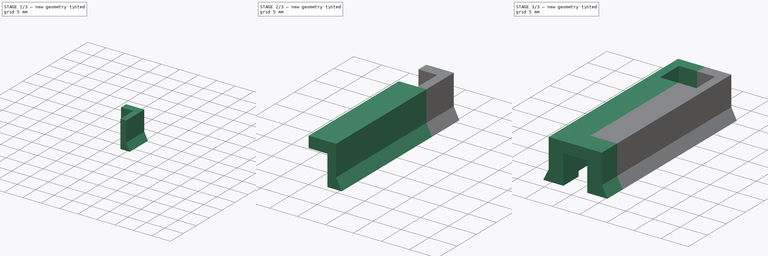
[diagram: build sequence overview — one tinted view per stage of 3, left to right]
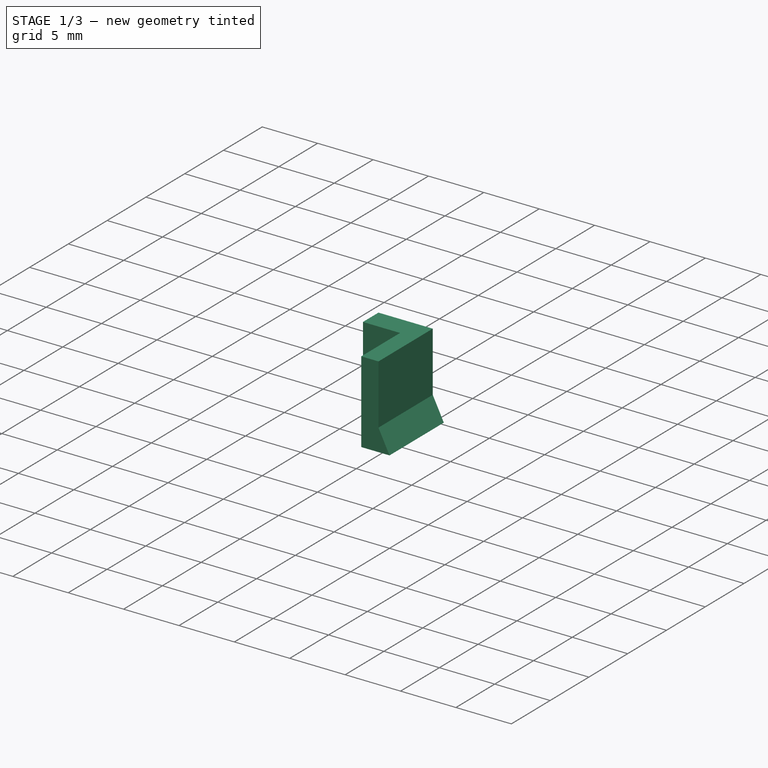
[diagram: stage 1 of 3 — iso view after this stage's code; geometry added in this stage tinted green]
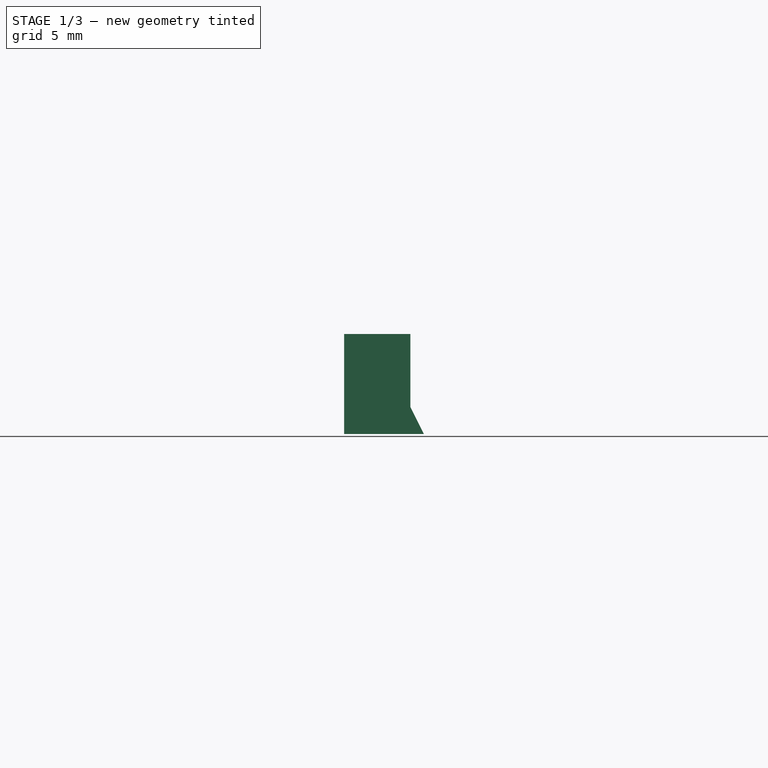
[diagram: stage 1 of 3 — front view after this stage's code; geometry added in this stage tinted green]
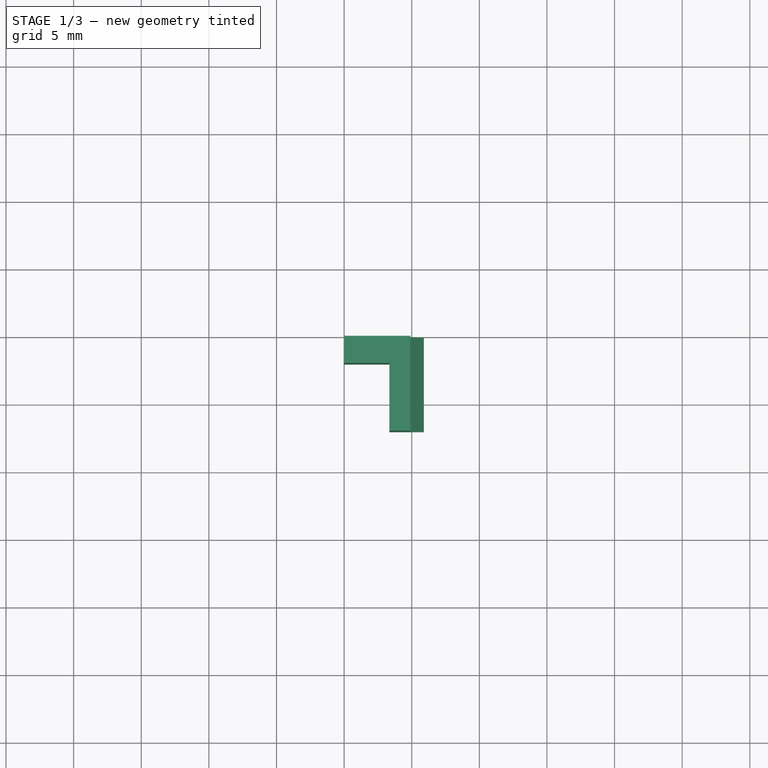
[diagram: stage 1 of 3 — top view after this stage's code; geometry added in this stage tinted green]
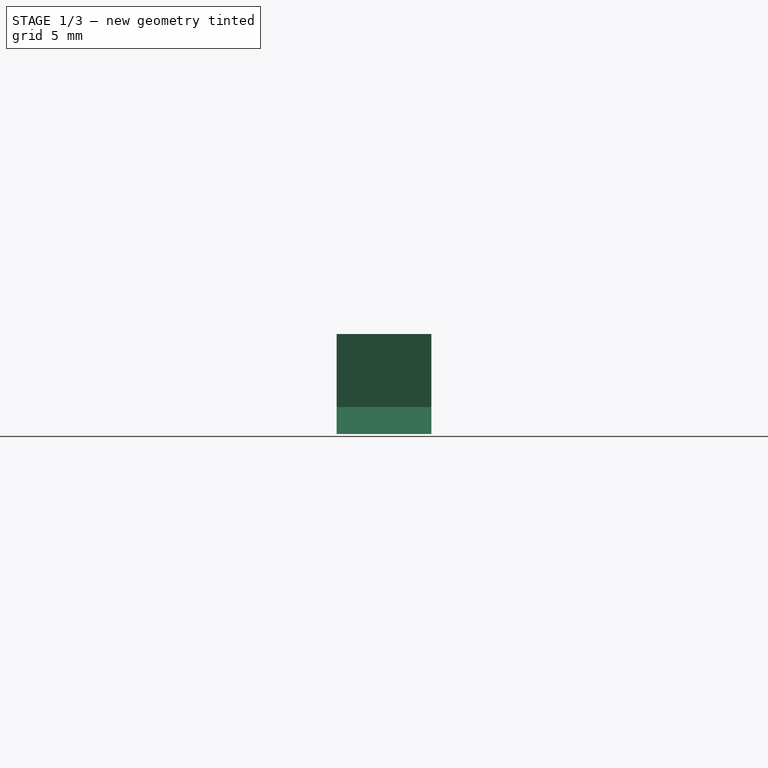
[diagram: stage 1 of 3 — right view after this stage's code; geometry added in this stage tinted green]
FCSTD DOCUMENT  (FreeCAD 0.19R24291 (Git))
Label: gercon Fixture
License: All rights reserved
LicenseURL: http://en.wikipedia.org/wiki/All_rights_reserved
objects: Sketcher::SketchObject×4, PartDesign::Pad×4, PartDesign::Mirrored×1, PartDesign::Body×1
note: 14 computed .brp shape members not serialized (recipe doc carries the construction recipe); baked Part::Feature solids carry a one-line shape summary decoded from their .brp

FEATURE [Sketcher::SketchObject] Sketch
  FullyConstrained = true
  MapMode = 5
  Placement = pos=(0,0,0) rot=(1,0,0;1.5708rad)
  Support = -> [XZ_Plane]
  sketch-geometry (5):
    g0: LineSegment StartX=5.9 StartY=0 StartZ=0 EndX=4.9 EndY=2 EndZ=0
    g1: LineSegment StartX=4.9 StartY=2 StartZ=0 EndX=4.9 EndY=7.4 EndZ=0
    g2: LineSegment StartX=4.9 StartY=7.4 StartZ=0 EndX=0 EndY=7.4 EndZ=0
    g3: LineSegment StartX=0 StartY=7.4 StartZ=0 EndX=0 EndY=0 EndZ=0
    g4: LineSegment StartX=0 StartY=0 StartZ=0 EndX=5.9 EndY=0 EndZ=0
  constraints (14):
    c: PointOnObject(g0,g-1)
    c: Distance(g0,g-1) = 5.9
    c: Distance(g0,g-2) = 4.9
    c: Distance(g0,g-1) = 2
    c: Coincident(g1,g0)
    c: Vertical(g1)
    c: Coincident(g2,g1)
    c: PointOnObject(g2,g-2)
    c: Horizontal(g2)
    c: Distance(g1,g-1) = 7.4
    c: Coincident(g3,g2)
    c: Coincident(g3,g-1)
    c: Coincident(g4,g3)
    c: Coincident(g4,g0)
FEATURE [PartDesign::Pad] Pad
  Direction = (1,1,1)
  Length = 2
  Length2 = 100
  Placement = pos=(0,0,0) rot=(1,0,0;1.5708rad)
  Profile = -> Sketch
  Type = 0
FEATURE [Sketcher::SketchObject] Sketch001
  AttachmentOffset = pos=(0,0,2) rot=(0,0,1;0rad)
  FullyConstrained = true
  MapMode = 5
  Placement = pos=(0,-2,4e-16) rot=(1,0,0;1.5708rad)
  Support = -> [XZ_Plane]
  expr: .AttachmentOffset.Base.z = Pad.Length
  expr: Constraints[9] = Sketch.Constraints[9]
  expr: Constraints[3] = Sketch.Constraints[3]
  expr: Constraints[2] = Sketch.Constraints[2]
  expr: Constraints[1] = Sketch.Constraints[1]
  sketch-geometry (8):
    g0: LineSegment StartX=5.9 StartY=0 StartZ=0 EndX=4.9 EndY=2 EndZ=0
    g1: LineSegment StartX=4.9 StartY=2 StartZ=0 EndX=4.9 EndY=7.4 EndZ=0
    g2: LineSegment StartX=4.9 StartY=7.4 StartZ=0 EndX=0 EndY=7.4 EndZ=0
    g3: LineSegment StartX=0 StartY=7.4 StartZ=0 EndX=0 EndY=0 EndZ=0
    g4: LineSegment StartX=0 StartY=0 StartZ=0 EndX=5.9 EndY=0 EndZ=0
    g5: LineSegment StartX=5.9 StartY=0 StartZ=0 EndX=3.35 EndY=0 EndZ=0
    g6: LineSegment StartX=3.35 StartY=0 StartZ=0 EndX=3.35 EndY=7.4 EndZ=0
    g7: LineSegment StartX=4.9 StartY=7.4 StartZ=0 EndX=3.35 EndY=7.4 EndZ=0
  constraints (22):
    c: PointOnObject(g0,g-1)
    c: Distance(g0,g-1) = 5.9
    c: Distance(g0,g-2) = 4.9
    c: Distance(g0,g-1) = 2
    c: Coincident(g1,g0)
    c: Vertical(g1)
    c: Coincident(g2,g1)
    c: PointOnObject(g2,g-2)
    c: Horizontal(g2)
    c: Distance(g1,g-1) = 7.4
    c: Coincident(g3,g2)
    c: Coincident(g3,g-1)
    c: Coincident(g4,g3)
    c: Coincident(g4,g0)
    c: Coincident(g5,g0)
    c: PointOnObject(g5,g4)
    c: Coincident(g6,g5)
    c: Vertical(g6)
    c: Coincident(g7,g1)
    c: PointOnObject(g7,g2)
    c: Coincident(g6,g7)
    c: Distance(g5,g-2) = 3.35
FEATURE [PartDesign::Pad] Pad001
  BaseFeature = -> Pad
  Direction = (1,1,1)
  Length = 5
  Length2 = 100
  Placement = pos=(0,0,0) rot=(1,0,0;1.5708rad)
  Profile = -> Sketch001
  Type = 0
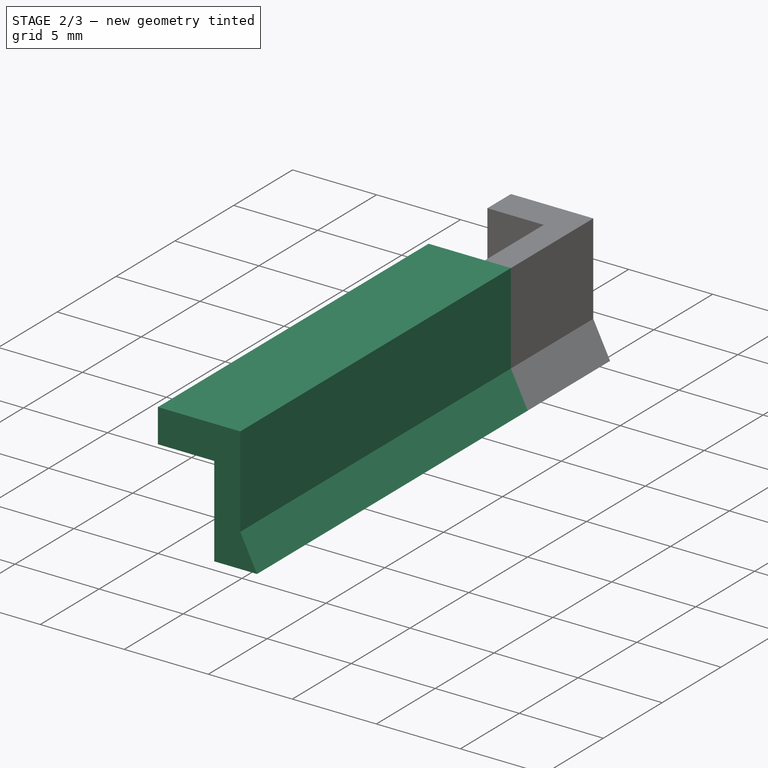
[diagram: stage 2 of 3 — iso view after this stage's code; geometry added in this stage tinted green]
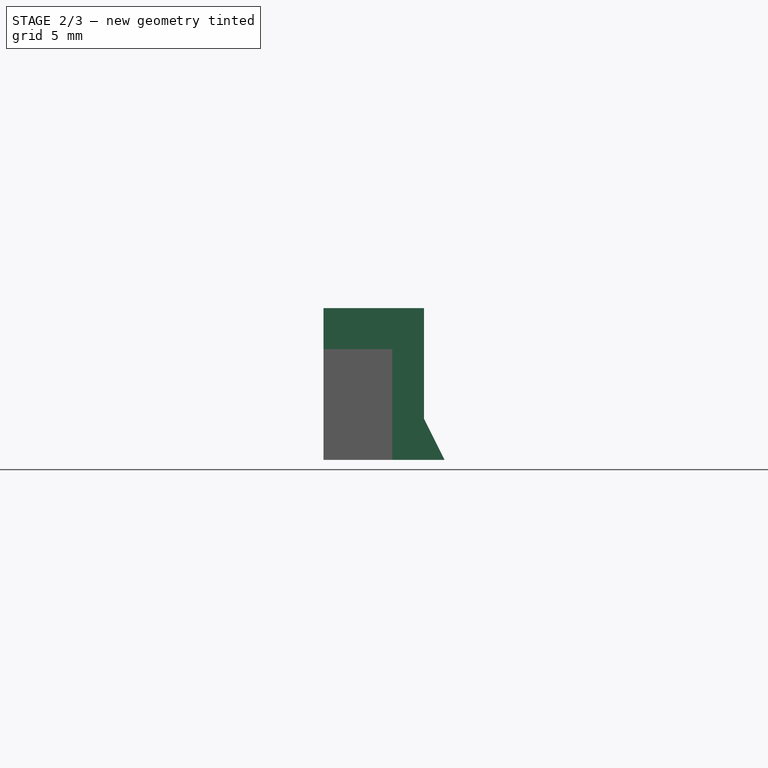
[diagram: stage 2 of 3 — front view after this stage's code; geometry added in this stage tinted green]
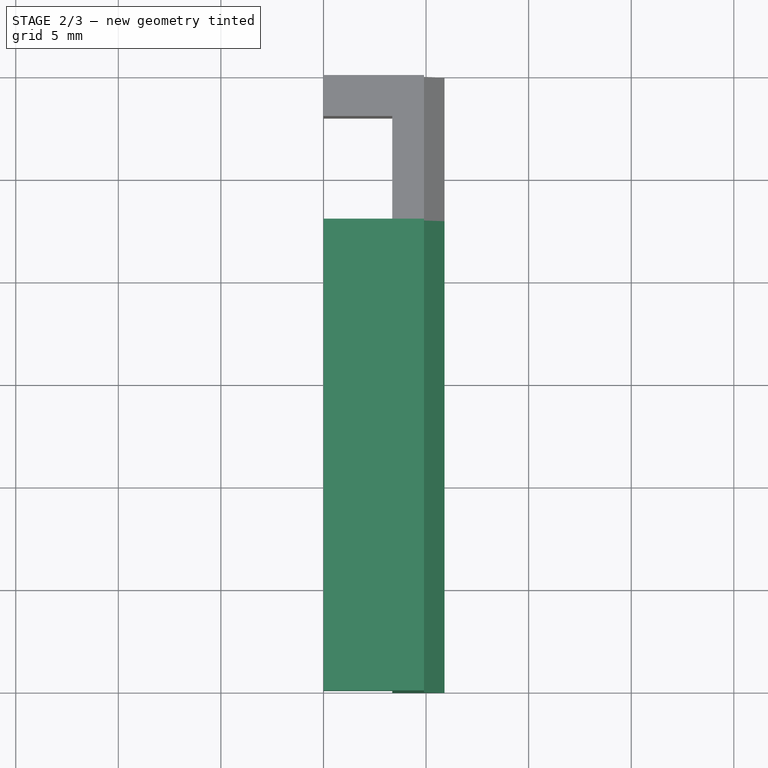
[diagram: stage 2 of 3 — top view after this stage's code; geometry added in this stage tinted green]
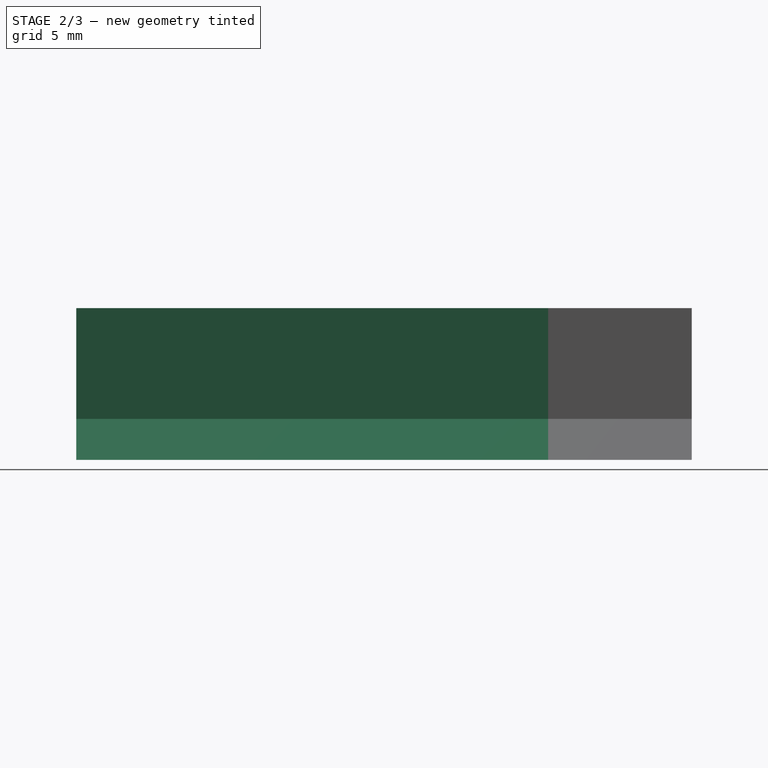
[diagram: stage 2 of 3 — right view after this stage's code; geometry added in this stage tinted green]
FEATURE [Sketcher::SketchObject] Sketch002
  AttachmentOffset = pos=(0,0,7) rot=(0,0,1;0rad)
  FullyConstrained = true
  MapMode = 5
  Placement = pos=(0,-7,1.6e-15) rot=(1,0,0;1.5708rad)
  Support = -> [XZ_Plane]
  expr: .AttachmentOffset.Base.z = Pad.Length + Pad001.Length
  expr: Constraints[21] = Sketch001.Constraints[21]
  expr: Constraints[9] = Sketch001.Constraints[9]
  expr: Constraints[3] = Sketch001.Constraints[3]
  expr: Constraints[2] = Sketch001.Constraints[2]
  expr: Constraints[1] = Sketch001.Constraints[1]
  sketch-geometry (11):
    g0: LineSegment StartX=5.9 StartY=0 StartZ=0 EndX=4.9 EndY=2 EndZ=0
    g1: LineSegment StartX=4.9 StartY=2 StartZ=0 EndX=4.9 EndY=7.4 EndZ=0
    g2: LineSegment StartX=4.9 StartY=7.4 StartZ=0 EndX=0 EndY=7.4 EndZ=0
    g3: LineSegment StartX=0 StartY=7.4 StartZ=0 EndX=0 EndY=0 EndZ=0
    g4: LineSegment StartX=0 StartY=0 StartZ=0 EndX=5.9 EndY=0 EndZ=0
    g5: LineSegment StartX=5.9 StartY=0 StartZ=0 EndX=3.35 EndY=0 EndZ=0
    g6: LineSegment StartX=3.35 StartY=0 StartZ=0 EndX=3.35 EndY=7.4 EndZ=0
    g7: LineSegment StartX=4.9 StartY=7.4 StartZ=0 EndX=3.35 EndY=7.4 EndZ=0
    g8: LineSegment StartX=0 StartY=7.4 StartZ=0 EndX=0 EndY=5.4 EndZ=0
    g9: LineSegment StartX=0 StartY=5.4 StartZ=0 EndX=3.35 EndY=5.4 EndZ=0
    g10: LineSegment StartX=3.35 StartY=5.4 StartZ=0 EndX=3.35 EndY=0 EndZ=0
  constraints (30):
    c: PointOnObject(g0,g-1)
    c: Distance(g0,g-1) = 5.9
    c: Distance(g0,g-2) = 4.9
    c: Distance(g0,g-1) = 2
    c: Coincident(g1,g0)
    c: Vertical(g1)
    c: Coincident(g2,g1)
    c: PointOnObject(g2,g-2)
    c: Horizontal(g2)
    c: Distance(g1,g-1) = 7.4
    c: Coincident(g3,g2)
    c: Coincident(g3,g-1)
    c: Coincident(g4,g3)
    c: Coincident(g4,g0)
    c: Coincident(g5,g0)
    c: PointOnObject(g5,g4)
    c: Coincident(g6,g5)
    c: Vertical(g6)
    c: Coincident(g7,g1)
    c: PointOnObject(g7,g2)
    c: Coincident(g6,g7)
    c: Distance(g5,g-2) = 3.35
    c: Coincident(g8,g2)
    c: PointOnObject(g8,g3)
    c: Coincident(g9,g8)
    c: PointOnObject(g9,g6)
    c: Horizontal(g9)
    c: Coincident(g10,g9)
    c: Coincident(g10,g5)
    c: Distance(g8) = 2
FEATURE [PartDesign::Pad] Pad002
  BaseFeature = -> Pad001
  Direction = (1,1,1)
  Length = 23
  Length2 = 100
  Placement = pos=(0,0,0) rot=(1,0,0;1.5708rad)
  Profile = -> Sketch002
  Type = 0
  expr: Length = 28mm - Pad001.Length
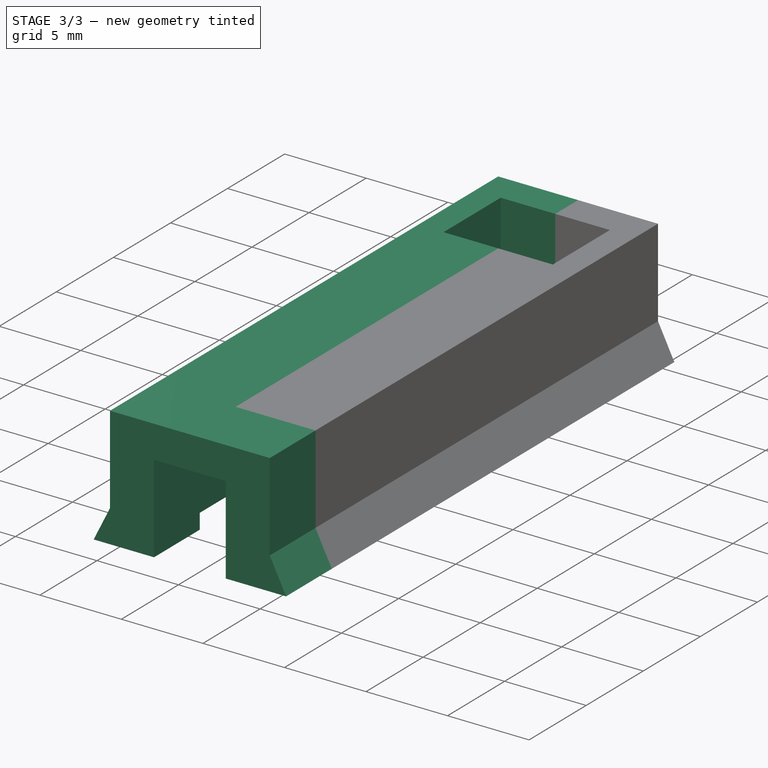
[diagram: stage 3 of 3 — iso view after this stage's code; geometry added in this stage tinted green]
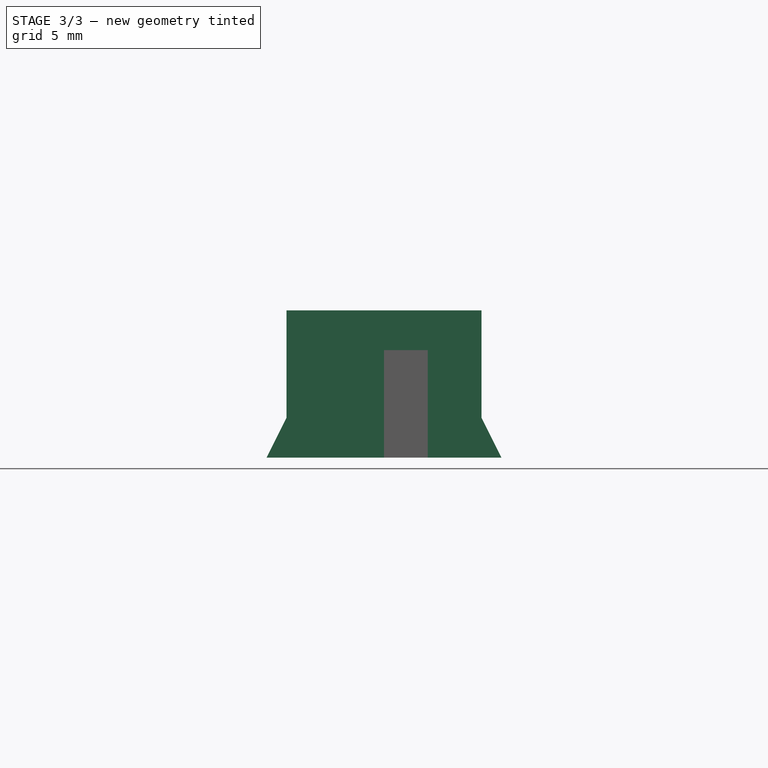
[diagram: stage 3 of 3 — front view after this stage's code; geometry added in this stage tinted green]
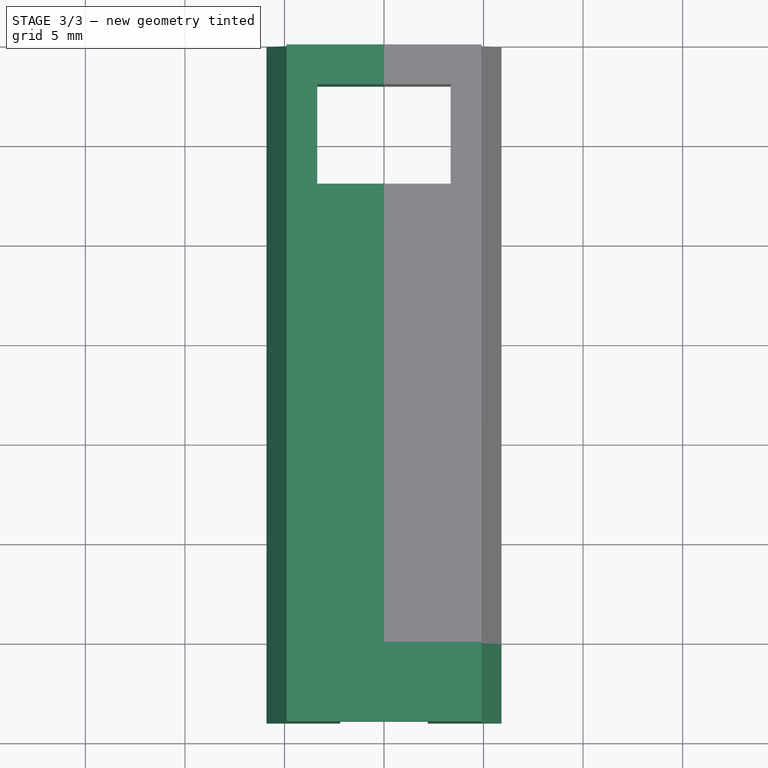
[diagram: stage 3 of 3 — top view after this stage's code; geometry added in this stage tinted green]
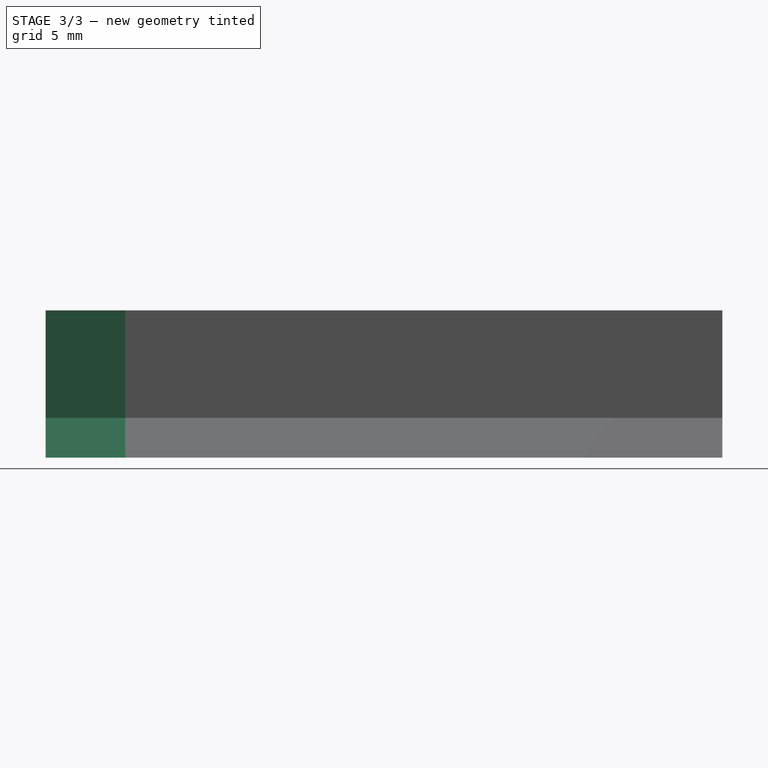
[diagram: stage 3 of 3 — right view after this stage's code; geometry added in this stage tinted green]
FEATURE [Sketcher::SketchObject] Sketch003
  AttachmentOffset = pos=(0,0,30) rot=(0,0,1;0rad)
  FullyConstrained = true
  MapMode = 5
  Placement = pos=(0,-30,6.7e-15) rot=(1,0,0;1.5708rad)
  Support = -> [XZ_Plane]
  expr: .AttachmentOffset.Base.z = Pad.Length + Pad001.Length + Pad002.Length
  expr: Constraints[21] = Sketch002.Constraints[21]
  expr: Constraints[24] = Sketch002.Constraints[29]
  expr: Constraints[3] = Sketch002.Constraints[3]
  expr: Constraints[9] = Sketch002.Constraints[9]
  expr: Constraints[2] = Sketch002.Constraints[2]
  expr: Constraints[1] = Sketch002.Constraints[1]
  sketch-geometry (12):
    g0: LineSegment StartX=5.9 StartY=0 StartZ=0 EndX=4.9 EndY=2 EndZ=0
    g1: LineSegment StartX=4.9 StartY=2 StartZ=0 EndX=4.9 EndY=7.4 EndZ=0
    g2: LineSegment StartX=4.9 StartY=7.4 StartZ=0 EndX=0 EndY=7.4 EndZ=0
    g3: LineSegment StartX=0 StartY=7.4 StartZ=0 EndX=0 EndY=0 EndZ=0
    g4: LineSegment StartX=0 StartY=0 StartZ=0 EndX=5.9 EndY=0 EndZ=0
    g5: LineSegment StartX=5.9 StartY=0 StartZ=0 EndX=3.35 EndY=0 EndZ=0
    g6: LineSegment StartX=3.35 StartY=0 StartZ=0 EndX=3.35 EndY=7.4 EndZ=0
    g7: LineSegment StartX=4.9 StartY=7.4 StartZ=0 EndX=3.35 EndY=7.4 EndZ=0
    g8: LineSegment StartX=0 StartY=7.4 StartZ=0 EndX=0 EndY=5.4 EndZ=0
    g9: LineSegment StartX=3.35 StartY=0 StartZ=0 EndX=2.2 EndY=0 EndZ=0
    g10: LineSegment StartX=0 StartY=5.4 StartZ=0 EndX=2.2 EndY=5.4 EndZ=0
    g11: LineSegment StartX=2.2 StartY=5.4 StartZ=0 EndX=2.2 EndY=0 EndZ=0
  constraints (33):
    c: PointOnObject(g0,g-1)
    c: Distance(g0,g-1) = 5.9
    c: Distance(g0,g-2) = 4.9
    c: Distance(g0,g-1) = 2
    c: Coincident(g1,g0)
    c: Vertical(g1)
    c: Coincident(g2,g1)
    c: PointOnObject(g2,g-2)
    c: Horizontal(g2)
    c: Distance(g1,g-1) = 7.4
    c: Coincident(g3,g2)
    c: Coincident(g3,g-1)
    c: Coincident(g4,g3)
    c: Coincident(g4,g0)
    c: Coincident(g5,g0)
    c: PointOnObject(g5,g4)
    c: Coincident(g6,g5)
    c: Vertical(g6)
    c: Coincident(g7,g1)
    c: PointOnObject(g7,g2)
    c: Coincident(g6,g7)
    c: Distance(g5,g-2) = 3.35
    c: Coincident(g8,g2)
    c: PointOnObject(g8,g3)
    c: Distance(g8) = 2
    c: Coincident(g9,g5)
    c: PointOnObject(g9,g4)
    c: Coincident(g10,g8)
    c: Horizontal(g10)
    c: Coincident(g11,g10)
    c: Coincident(g11,g9)
    c: Vertical(g11)
    c: Distance(g10) = 2.2
FEATURE [PartDesign::Pad] Pad003
  BaseFeature = -> Pad002
  Direction = (1,1,1)
  Length = 4
  Length2 = 100
  Placement = pos=(0,0,0) rot=(1,0,0;1.5708rad)
  Profile = -> Sketch003
  Type = 0
FEATURE [PartDesign::Mirrored] Mirrored
  BaseFeature = -> Pad003
  MirrorPlane = -> Sketch [V_Axis]
  Originals = -> [Pad,Pad001,Pad002,Pad003]
  Placement = pos=(0,0,0) rot=(1,0,0;1.5708rad)
FEATURE [PartDesign::Body] Body
  Group = -> [Sketch,Pad,Sketch001,Pad001,Sketch002,Pad002,Sketch003,Pad003,Mirrored]
  Origin = -> Origin
  Tip = -> Mirrored
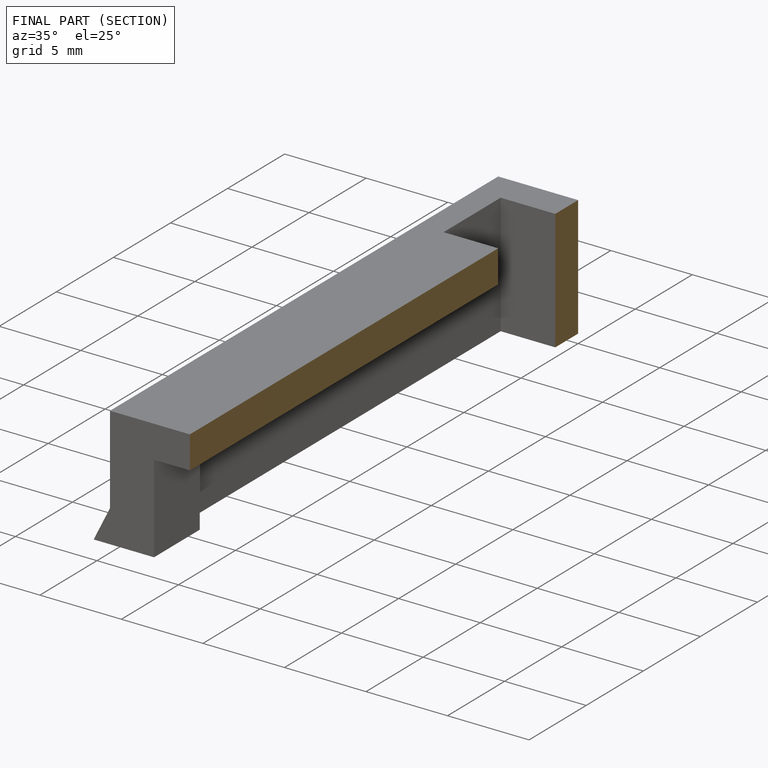
[diagram: finished part — half-section view (interior)]
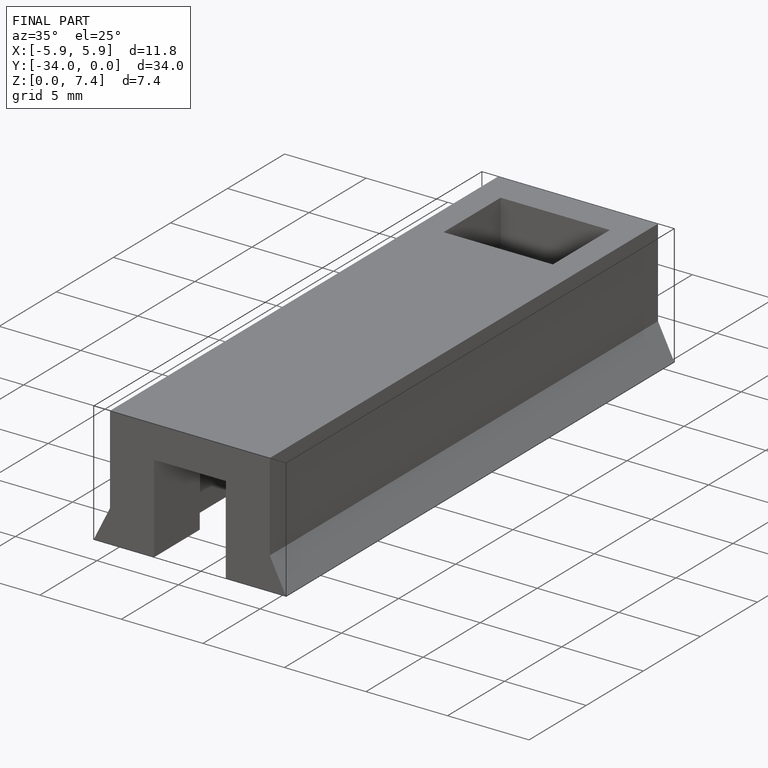
[diagram: finished part — iso view with bounding-box wireframe]
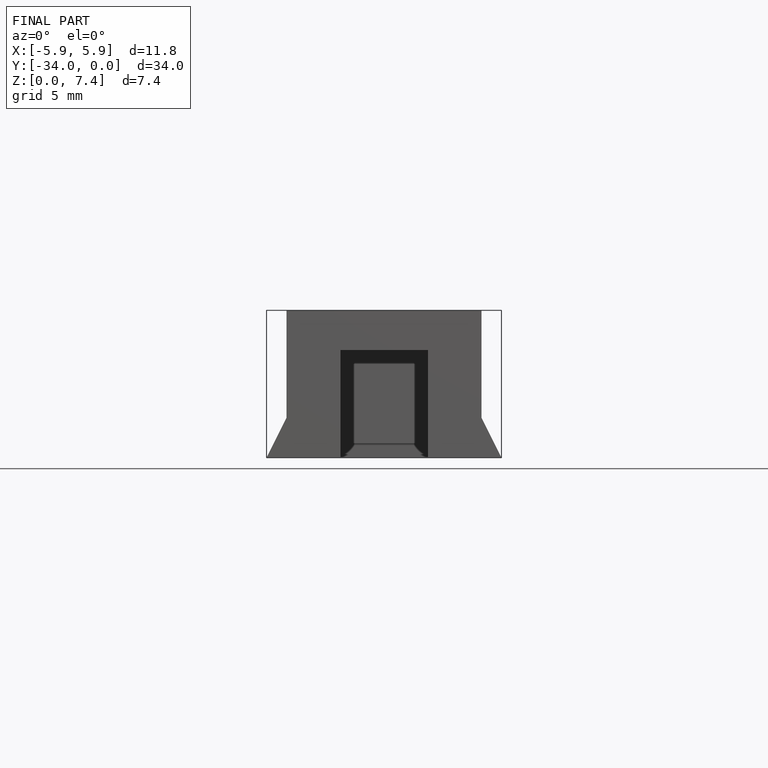
[diagram: finished part — front view with bounding-box wireframe]
